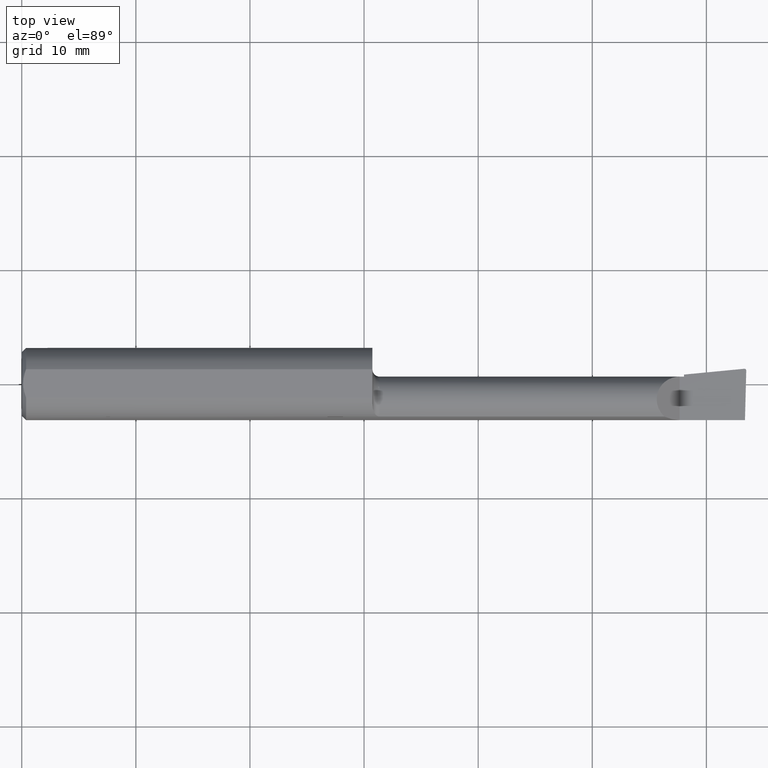
[diagram: clean part render]
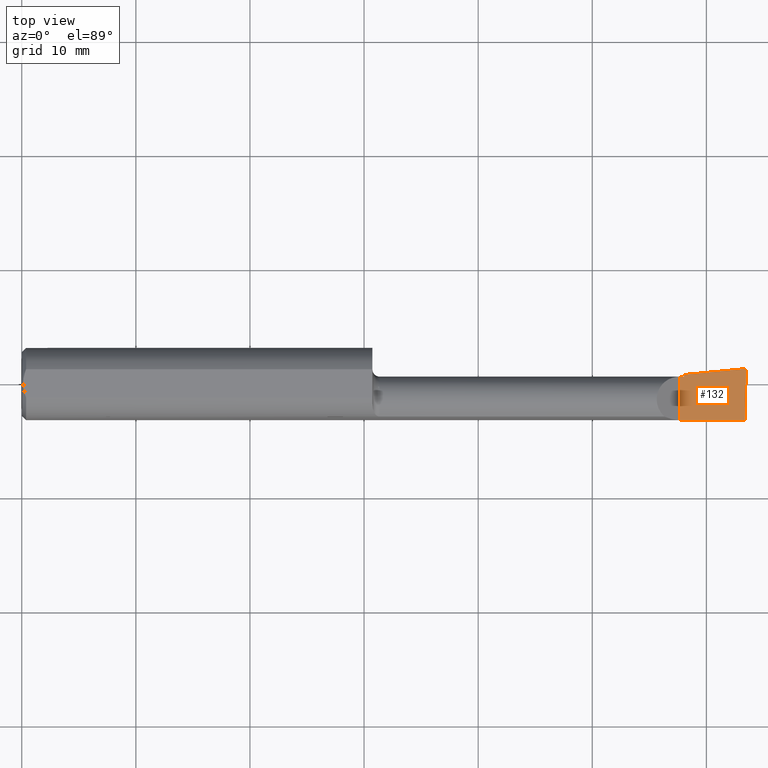
[diagram: same view with one face highlighted and labeled with its STEP entity id]
A machine part, top view. The second image highlights one B-rep face of the part: STEP entity #132.
In plain terms, the highlighted planar face has unit normal (-0, 0, -1).
Its self-contained STEP definition (entity closure, byte-faithful):
#10 = VECTOR ( 'NONE', #166, 39.37007874015748143 ) ;
#11 = VERTEX_POINT ( 'NONE', #477 ) ;
#13 = CARTESIAN_POINT ( 'NONE',  ( 2.270000000000000018, 0.02514999999999986691, 2.816687638038912303E-17 ) ) ;
#38 = AXIS2_PLACEMENT_3D ( 'NONE', #316, #143, #465 ) ;
#41 = VERTEX_POINT ( 'NONE', #152 ) ;
#50 = VECTOR ( 'NONE', #269, 39.37007874015748143 ) ;
#56 =( BOUNDED_CURVE ( )  B_SPLINE_CURVE ( 3, ( #567, #651, #568, #196 ),
 .UNSPECIFIED., .F., .T. ) 
 B_SPLINE_CURVE_WITH_KNOTS ( ( 4, 4 ),
 ( 1.953092279228668460, 3.511516179717886210 ),
 .UNSPECIFIED. ) 
 CURVE ( )  GEOMETRIC_REPRESENTATION_ITEM ( )  RATIONAL_B_SPLINE_CURVE ( ( 1.000000000000000000, 0.8076450242550503589, 0.8076450242550503589, 1.000000000000000000 ) ) 
 REPRESENTATION_ITEM ( '' )  );
#61 = DIRECTION ( 'NONE',  ( -1.000000000000000000, -0.0000000000000000000, -0.0000000000000000000 ) ) ;
#101 = ORIENTED_EDGE ( 'NONE', *, *, #256, .F. ) ;
#117 = EDGE_CURVE ( 'NONE', #270, #633, #265, .T. ) ;
#123 = FACE_OUTER_BOUND ( 'NONE', #611, .T. ) ;
#132 = ADVANCED_FACE ( 'NONE', ( #123 ), #416, .F. ) ;
#143 = DIRECTION ( 'NONE',  ( -4.194046792260684025E-16, 0.0000000000000000000, -1.000000000000000000 ) ) ;
#151 = EDGE_CURVE ( 'NONE', #478, #255, #56, .T. ) ;
#152 = CARTESIAN_POINT ( 'NONE',  ( 2.492906680581910006, 0.05246699102467097114, -6.532122848641467145E-17 ) ) ;
#162 = EDGE_CURVE ( 'NONE', #11, #478, #301, .T. ) ;
#166 = DIRECTION ( 'NONE',  ( 0.9953961983671787417, 0.09584575252022459191, -4.174738232790345673E-16 ) ) ;
#196 = CARTESIAN_POINT ( 'NONE',  ( 2.493512870449331675, 0.05249616680637380489, -5.122214988120493535E-17 ) ) ;
#209 = VECTOR ( 'NONE', #247, 39.37007874015748854 ) ;
#235 = EDGE_CURVE ( 'NONE', #633, #41, #486, .T. ) ;
#236 = EDGE_CURVE ( 'NONE', #336, #270, #438, .T. ) ;
#247 = DIRECTION ( 'NONE',  ( 0.02617694830793555402, 0.9996573249755555945, -1.124167145980600393E-17 ) ) ;
#255 = VERTEX_POINT ( 'NONE', #535 ) ;
#256 = EDGE_CURVE ( 'NONE', #599, #336, #476, .T. ) ;
#265 = LINE ( 'NONE', #654, #283 ) ;
#269 = DIRECTION ( 'NONE',  ( -0.0000000000000000000, 1.000000000000000000, -0.0000000000000000000 ) ) ;
#270 = VERTEX_POINT ( 'NONE', #533 ) ;
#273 = CARTESIAN_POINT ( 'NONE',  ( 2.702822108735687789E-19, 0.02514999999999990160, 9.802154982235641300E-16 ) ) ;
#283 = VECTOR ( 'NONE', #612, 39.37007874015748143 ) ;
#290 = CARTESIAN_POINT ( 'NONE',  ( 2.493310817358693754, 0.05249616680637381877, -5.124634811486052309E-17 ) ) ;
#297 = EDGE_CURVE ( 'NONE', #255, #41, #480, .T. ) ;
#299 = ORIENTED_EDGE ( 'NONE', *, *, #297, .T. ) ;
#301 = LINE ( 'NONE', #510, #209 ) ;
#316 = CARTESIAN_POINT ( 'NONE',  ( 2.500000000000000000, -0.2500000000000000555, -6.829619984160658046E-17 ) ) ;
#327 = ORIENTED_EDGE ( 'NONE', *, *, #236, .F. ) ;
#336 = VERTEX_POINT ( 'NONE', #13 ) ;
#340 = ORIENTED_EDGE ( 'NONE', *, *, #495, .F. ) ;
#376 = CARTESIAN_POINT ( 'NONE',  ( 2.499806390372796727, 0.04575634663142228581, -6.829273631983890043E-17 ) ) ;
#405 = CARTESIAN_POINT ( 'NONE',  ( 2.492906680581910006, 0.05246699102467097114, -6.532122848641467145E-17 ) ) ;
#416 = PLANE ( 'NONE',  #38 ) ;
#432 = VECTOR ( 'NONE', #436, 39.37007874015748143 ) ;
#436 = DIRECTION ( 'NONE',  ( 1.000000000000000000, -3.414809992080329023E-18, 0.0000000000000000000 ) ) ;
#438 = LINE ( 'NONE', #273, #432 ) ;
#464 = ORIENTED_EDGE ( 'NONE', *, *, #235, .F. ) ;
#465 = DIRECTION ( 'NONE',  ( -1.000000000000000000, 0.0000000000000000000, 4.194046792260684025E-16 ) ) ;
#476 = LINE ( 'NONE', #668, #50 ) ;
#477 = CARTESIAN_POINT ( 'NONE',  ( 2.495338905960690301, -0.1248500000000000582, -6.637417838016179921E-17 ) ) ;
#478 = VERTEX_POINT ( 'NONE', #376 ) ;
#480 =( BOUNDED_CURVE ( )  B_SPLINE_CURVE ( 3, ( #553, #290, #497, #405 ),
 .UNSPECIFIED., .F., .T. ) 
 B_SPLINE_CURVE_WITH_KNOTS ( ( 4, 4 ),
 ( 3.511516179717886210, 3.604018710826484284 ),
 .UNSPECIFIED. ) 
 CURVE ( )  GEOMETRIC_REPRESENTATION_ITEM ( )  RATIONAL_B_SPLINE_CURVE ( ( 1.000000000000000000, 0.9992870672494007511, 0.9992870672494007511, 1.000000000000000000 ) ) 
 REPRESENTATION_ITEM ( '' )  );
#484 = CARTESIAN_POINT ( 'NONE',  ( 1.387204702863203742, -0.05399999999999999939, 3.984153547983287662E-16 ) ) ;
#486 = LINE ( 'NONE', #484, #10 ) ;
#495 = EDGE_CURVE ( 'NONE', #11, #599, #523, .T. ) ;
#497 = CARTESIAN_POINT ( 'NONE',  ( 2.493108609909240325, 0.05248643460740284872, -5.116154136438528303E-17 ) ) ;
#510 = CARTESIAN_POINT ( 'NONE',  ( 2.492067177432473635, -0.2497922717304240092, -6.496913693731578984E-17 ) ) ;
#518 = ORIENTED_EDGE ( 'NONE', *, *, #162, .T. ) ;
#523 = LINE ( 'NONE', #546, #579 ) ;
#530 = ORIENTED_EDGE ( 'NONE', *, *, #117, .F. ) ;
#533 = CARTESIAN_POINT ( 'NONE',  ( 2.285000000000000142, 0.02514999999999996058, 9.802154982235649188E-16 ) ) ;
#535 = CARTESIAN_POINT ( 'NONE',  ( 2.493512870449331675, 0.05249616680637380489, -5.122214988120493535E-17 ) ) ;
#546 = CARTESIAN_POINT ( 'NONE',  ( 4.111069666048746882E-31, -0.1248499999999999888, 9.802154982235641300E-16 ) ) ;
#553 = CARTESIAN_POINT ( 'NONE',  ( 2.493512870449331675, 0.05249616680637380489, -5.122214988120493535E-17 ) ) ;
#554 = CARTESIAN_POINT ( 'NONE',  ( 2.285000000000000142, 0.03244785463753243476, 9.796236164780443746E-16 ) ) ;
#555 = ORIENTED_EDGE ( 'NONE', *, *, #151, .T. ) ;
#567 = CARTESIAN_POINT ( 'NONE',  ( 2.499806390372796727, 0.04575634663142228581, -6.829273631983890043E-17 ) ) ;
#568 = CARTESIAN_POINT ( 'NONE',  ( 2.497312560284842053, 0.05249616680637353427, -5.292469782314667367E-17 ) ) ;
#579 = VECTOR ( 'NONE', #61, 39.37007874015748143 ) ;
#599 = VERTEX_POINT ( 'NONE', #642 ) ;
#611 = EDGE_LOOP ( 'NONE', ( #518, #555, #299, #464, #530, #327, #101, #340 ) ) ;
#612 = DIRECTION ( 'NONE',  ( 3.414809992080329408E-18, 1.000000000000000000, -1.432187289346423802E-33 ) ) ;
#633 = VERTEX_POINT ( 'NONE', #554 ) ;
#642 = CARTESIAN_POINT ( 'NONE',  ( 2.270000000000000018, -0.1248500000000000165, 2.816687638038912303E-17 ) ) ;
#651 = CARTESIAN_POINT ( 'NONE',  ( 2.499910038027521431, 0.04971449087509909742, -5.401409214261198222E-17 ) ) ;
#654 = CARTESIAN_POINT ( 'NONE',  ( 2.285000000000000142, -0.2500000000000000555, 2.187580619199813988E-17 ) ) ;
#668 = CARTESIAN_POINT ( 'NONE',  ( 2.270000000000000018, -0.2500000000000000555, 2.816687638038912303E-17 ) ) ;